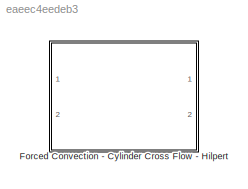
MODEL slx_eaeec4eedeb3
KIND library
CONFIG AbsTol = auto
CONFIG FixedStep = auto
CONFIG MaxStep = auto
CONFIG MinStep = auto
CONFIG RelTol = 1e-3
CONFIG SampleTimeConstraint = Unconstrained
CONFIG Solver = ode45
CONFIG SolverMode = Auto
CONFIG SolverName = ode45
CONFIG StartTime = 0.0
CONFIG StopTime = 10.0
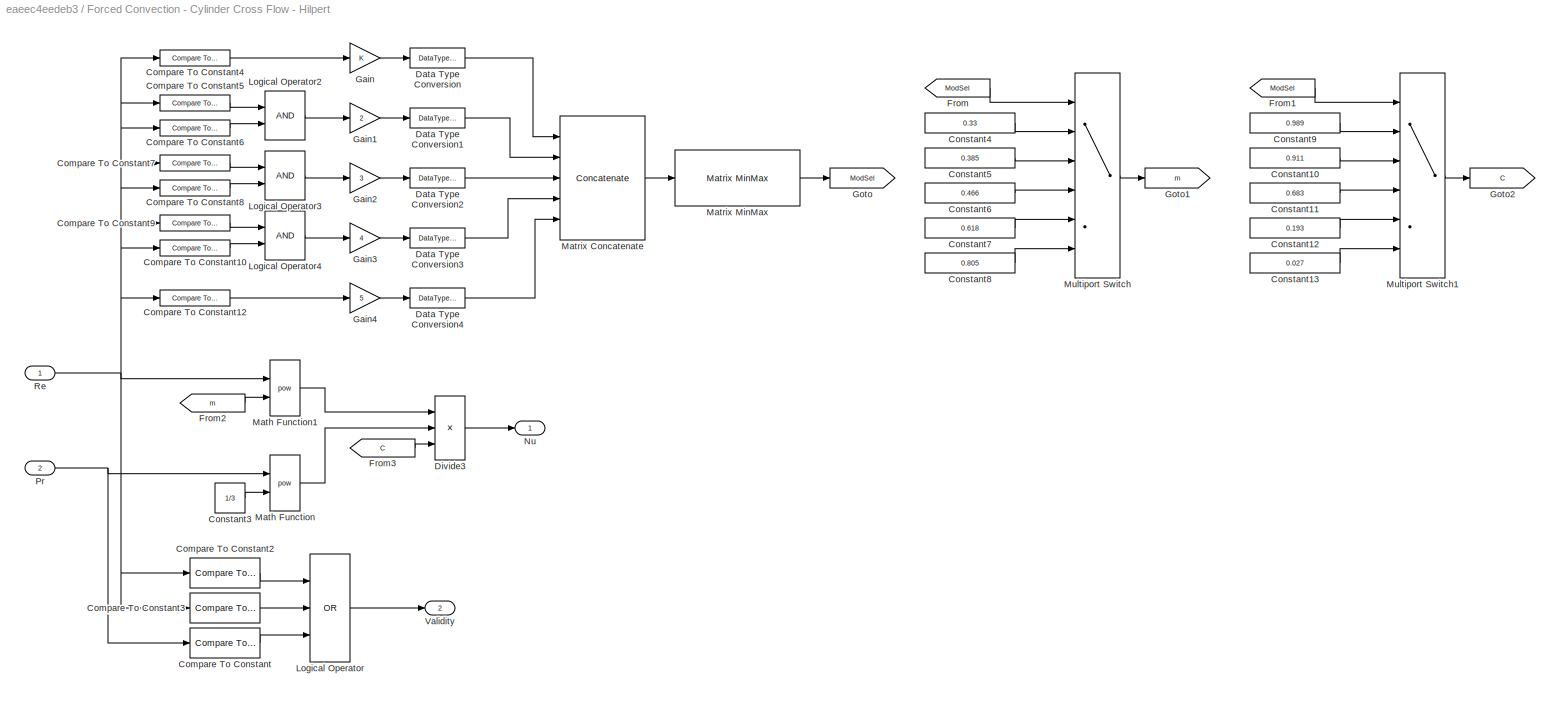
BLOCK [SubSystem] Forced Convection - Cylinder Cross Flow - Hilpert
  Ports = [2, 2]
  RequestExecContextInheritance = off
BLOCK [Reference] Forced Convection - Cylinder Cross Flow - Hilpert/Compare To Constant  REF=simulink/Logic and Bit
Operations/Compare
To Constant
  OutDataTypeStr = boolean
  Ports = [1, 1]
  SourceBlock = simulink/Logic and Bit\nOperations/Compare\nTo Constant
  SourceType = Compare To Constant
  ZeroCross = on
  const = 0.7
  relop = <
BLOCK [Reference] Forced Convection - Cylinder Cross Flow - Hilpert/Compare To Constant10  REF=simulink/Logic and Bit
Operations/Compare
To Constant
  OutDataTypeStr = boolean
  Ports = [1, 1]
  SourceBlock = simulink/Logic and Bit\nOperations/Compare\nTo Constant
  SourceType = Compare To Constant
  ZeroCross = on
  const = 40000
  relop = <
BLOCK [Reference] Forced Convection - Cylinder Cross Flow - Hilpert/Compare To Constant12  REF=simulink/Logic and Bit
Operations/Compare
To Constant
  OutDataTypeStr = boolean
  Ports = [1, 1]
  SourceBlock = simulink/Logic and Bit\nOperations/Compare\nTo Constant
  SourceType = Compare To Constant
  ZeroCross = on
  const = 40000
  relop = >=
BLOCK [Reference] Forced Convection - Cylinder Cross Flow - Hilpert/Compare To Constant2  REF=simulink/Logic and Bit
Operations/Compare
To Constant
  OutDataTypeStr = boolean
  Ports = [1, 1]
  SourceBlock = simulink/Logic and Bit\nOperations/Compare\nTo Constant
  SourceType = Compare To Constant
  ZeroCross = on
  const = 0.4
  relop = <
BLOCK [Reference] Forced Convection - Cylinder Cross Flow - Hilpert/Compare To Constant3  REF=simulink/Logic and Bit
Operations/Compare
To Constant
  OutDataTypeStr = boolean
  Ports = [1, 1]
  SourceBlock = simulink/Logic and Bit\nOperations/Compare\nTo Constant
  SourceType = Compare To Constant
  ZeroCross = on
  const = 400000
  relop = >
BLOCK [Reference] Forced Convection - Cylinder Cross Flow - Hilpert/Compare To Constant4  REF=simulink/Logic and Bit
Operations/Compare
To Constant
  OutDataTypeStr = boolean
  Ports = [1, 1]
  SourceBlock = simulink/Logic and Bit\nOperations/Compare\nTo Constant
  SourceType = Compare To Constant
  ZeroCross = on
  const = 4
  relop = <
BLOCK [Reference] Forced Convection - Cylinder Cross Flow - Hilpert/Compare To Constant5  REF=simulink/Logic and Bit
Operations/Compare
To Constant
  OutDataTypeStr = boolean
  Ports = [1, 1]
  SourceBlock = simulink/Logic and Bit\nOperations/Compare\nTo Constant
  SourceType = Compare To Constant
  ZeroCross = on
  const = 4
  relop = >=
BLOCK [Reference] Forced Convection - Cylinder Cross Flow - Hilpert/Compare To Constant6  REF=simulink/Logic and Bit
Operations/Compare
To Constant
  OutDataTypeStr = boolean
  Ports = [1, 1]
  SourceBlock = simulink/Logic and Bit\nOperations/Compare\nTo Constant
  SourceType = Compare To Constant
  ZeroCross = on
  const = 40
  relop = <
BLOCK [Reference] Forced Convection - Cylinder Cross Flow - Hilpert/Compare To Constant7  REF=simulink/Logic and Bit
Operations/Compare
To Constant
  OutDataTypeStr = boolean
  Ports = [1, 1]
  SourceBlock = simulink/Logic and Bit\nOperations/Compare\nTo Constant
  SourceType = Compare To Constant
  ZeroCross = on
  const = 40
  relop = >=
BLOCK [Reference] Forced Convection - Cylinder Cross Flow - Hilpert/Compare To Constant8  REF=simulink/Logic and Bit
Operations/Compare
To Constant
  OutDataTypeStr = boolean
  Ports = [1, 1]
  SourceBlock = simulink/Logic and Bit\nOperations/Compare\nTo Constant
  SourceType = Compare To Constant
  ZeroCross = on
  const = 4000
  relop = <
BLOCK [Reference] Forced Convection - Cylinder Cross Flow - Hilpert/Compare To Constant9  REF=simulink/Logic and Bit
Operations/Compare
To Constant
  OutDataTypeStr = boolean
  Ports = [1, 1]
  SourceBlock = simulink/Logic and Bit\nOperations/Compare\nTo Constant
  SourceType = Compare To Constant
  ZeroCross = on
  const = 4000
  relop = >=
BLOCK [Constant] Forced Convection - Cylinder Cross Flow - Hilpert/Constant10
  Value = 0.911
BLOCK [Constant] Forced Convection - Cylinder Cross Flow - Hilpert/Constant11
  Value = 0.683
BLOCK [Constant] Forced Convection - Cylinder Cross Flow - Hilpert/Constant12
  Value = 0.193
BLOCK [Constant] Forced Convection - Cylinder Cross Flow - Hilpert/Constant13
  Value = 0.027
BLOCK [Constant] Forced Convection - Cylinder Cross Flow - Hilpert/Constant3
  Value = 1/3
BLOCK [Constant] Forced Convection - Cylinder Cross Flow - Hilpert/Constant4
  Value = 0.33
BLOCK [Constant] Forced Convection - Cylinder Cross Flow - Hilpert/Constant5
  Value = 0.385
BLOCK [Constant] Forced Convection - Cylinder Cross Flow - Hilpert/Constant6
  Value = 0.466
BLOCK [Constant] Forced Convection - Cylinder Cross Flow - Hilpert/Constant7
  Value = 0.618
BLOCK [Constant] Forced Convection - Cylinder Cross Flow - Hilpert/Constant8
  Value = 0.805
BLOCK [Constant] Forced Convection - Cylinder Cross Flow - Hilpert/Constant9
  Value = 0.989
BLOCK [DataTypeConversion] Forced Convection - Cylinder Cross Flow - Hilpert/Data Type Conversion
  OutDataTypeStr = double
  RndMeth = Floor
  SaturateOnIntegerOverflow = off
BLOCK [DataTypeConversion] Forced Convection - Cylinder Cross Flow - Hilpert/Data Type Conversion1
  OutDataTypeStr = double
  RndMeth = Floor
  SaturateOnIntegerOverflow = off
BLOCK [DataTypeConversion] Forced Convection - Cylinder Cross Flow - Hilpert/Data Type Conversion2
  OutDataTypeStr = double
  RndMeth = Floor
  SaturateOnIntegerOverflow = off
BLOCK [DataTypeConversion] Forced Convection - Cylinder Cross Flow - Hilpert/Data Type Conversion3
  OutDataTypeStr = double
  RndMeth = Floor
  SaturateOnIntegerOverflow = off
BLOCK [DataTypeConversion] Forced Convection - Cylinder Cross Flow - Hilpert/Data Type Conversion4
  OutDataTypeStr = double
  RndMeth = Floor
  SaturateOnIntegerOverflow = off
BLOCK [Product] Forced Convection - Cylinder Cross Flow - Hilpert/Divide3
  InputSameDT = off
  Inputs = ***
  OutDataTypeStr = Inherit: Inherit via internal rule
  Ports = [3, 1]
  RndMeth = Floor
  SaturateOnIntegerOverflow = off
BLOCK [From] Forced Convection - Cylinder Cross Flow - Hilpert/From
  GotoTag = ModSel
BLOCK [From] Forced Convection - Cylinder Cross Flow - Hilpert/From1
  GotoTag = ModSel
BLOCK [From] Forced Convection - Cylinder Cross Flow - Hilpert/From2
  GotoTag = m
BLOCK [From] Forced Convection - Cylinder Cross Flow - Hilpert/From3
  GotoTag = C
BLOCK [Gain] Forced Convection - Cylinder Cross Flow - Hilpert/Gain
  OutDataTypeStr = Inherit: Inherit via internal rule
  ParamDataTypeStr = Inherit: Inherit via internal rule
  SaturateOnIntegerOverflow = off
BLOCK [Gain] Forced Convection - Cylinder Cross Flow - Hilpert/Gain1
  Gain = 2
  OutDataTypeStr = Inherit: Inherit via internal rule
  ParamDataTypeStr = Inherit: Inherit via internal rule
  SaturateOnIntegerOverflow = off
BLOCK [Gain] Forced Convection - Cylinder Cross Flow - Hilpert/Gain2
  Gain = 3
  OutDataTypeStr = Inherit: Inherit via internal rule
  ParamDataTypeStr = Inherit: Inherit via internal rule
  SaturateOnIntegerOverflow = off
BLOCK [Gain] Forced Convection - Cylinder Cross Flow - Hilpert/Gain3
  Gain = 4
  OutDataTypeStr = Inherit: Inherit via internal rule
  ParamDataTypeStr = Inherit: Inherit via internal rule
  SaturateOnIntegerOverflow = off
BLOCK [Gain] Forced Convection - Cylinder Cross Flow - Hilpert/Gain4
  Gain = 5
  OutDataTypeStr = Inherit: Inherit via internal rule
  ParamDataTypeStr = Inherit: Inherit via internal rule
  SaturateOnIntegerOverflow = off
BLOCK [Goto] Forced Convection - Cylinder Cross Flow - Hilpert/Goto
  GotoTag = ModSel
BLOCK [Goto] Forced Convection - Cylinder Cross Flow - Hilpert/Goto1
  GotoTag = m
BLOCK [Goto] Forced Convection - Cylinder Cross Flow - Hilpert/Goto2
  GotoTag = C
BLOCK [Logic] Forced Convection - Cylinder Cross Flow - Hilpert/Logical Operator
  AllPortsSameDT = off
  Inputs = 3
  Operator = OR
  OutDataTypeStr = boolean
  Ports = [3, 1]
BLOCK [Logic] Forced Convection - Cylinder Cross Flow - Hilpert/Logical Operator2
  AllPortsSameDT = off
  OutDataTypeStr = boolean
  Ports = [2, 1]
BLOCK [Logic] Forced Convection - Cylinder Cross Flow - Hilpert/Logical Operator3
  AllPortsSameDT = off
  OutDataTypeStr = boolean
  Ports = [2, 1]
BLOCK [Logic] Forced Convection - Cylinder Cross Flow - Hilpert/Logical Operator4
  AllPortsSameDT = off
  OutDataTypeStr = boolean
  Ports = [2, 1]
BLOCK [Math] Forced Convection - Cylinder Cross Flow - Hilpert/Math Function
  Operator = pow
  Ports = [2, 1]
BLOCK [Math] Forced Convection - Cylinder Cross Flow - Hilpert/Math Function1
  Operator = pow
  Ports = [2, 1]
BLOCK [Concatenate] Forced Convection - Cylinder Cross Flow - Hilpert/Matrix Concatenate
  ConcatenateDimension = 2
  Mode = Multidimensional array
  NumInputs = 5
  Ports = [5, 1]
BLOCK [Reference] Forced Convection - Cylinder Cross Flow - Hilpert/Matrix MinMax  REF=lib_GenTools_MinMax/Matrix MinMax
  BN_M = gcb
  Ports = [1, 1]
  SourceBlock = lib_GenTools_MinMax/Matrix MinMax
  SourceType = TSAT: Matrix MinMax Block
  all_M = off
  cols_M = off
  minmax_M = off
  rows_M = on
BLOCK [MultiPortSwitch] Forced Convection - Cylinder Cross Flow - Hilpert/Multiport Switch
  InputSameDT = off
  Inputs = 5
  Ports = [6, 1]
  SaturateOnIntegerOverflow = off
BLOCK [MultiPortSwitch] Forced Convection - Cylinder Cross Flow - Hilpert/Multiport Switch1
  InputSameDT = off
  Inputs = 5
  Ports = [6, 1]
  SaturateOnIntegerOverflow = off
BLOCK [Outport] Forced Convection - Cylinder Cross Flow - Hilpert/Nu
  IconDisplay = Port number
BLOCK [Inport] Forced Convection - Cylinder Cross Flow - Hilpert/Pr
  IconDisplay = Port number
  Port = 2
BLOCK [Inport] Forced Convection - Cylinder Cross Flow - Hilpert/Re
  IconDisplay = Port number
BLOCK [Outport] Forced Convection - Cylinder Cross Flow - Hilpert/Validity
  IconDisplay = Port number
  Port = 2
LINE Forced Convection - Cylinder Cross Flow - Hilpert/Compare To Constant10:1 -> Forced Convection - Cylinder Cross Flow - Hilpert/Logical Operator4:2
LINE Forced Convection - Cylinder Cross Flow - Hilpert/Compare To Constant12:1 -> Forced Convection - Cylinder Cross Flow - Hilpert/Gain4:1
LINE Forced Convection - Cylinder Cross Flow - Hilpert/Compare To Constant2:1 -> Forced Convection - Cylinder Cross Flow - Hilpert/Logical Operator:1
LINE Forced Convection - Cylinder Cross Flow - Hilpert/Compare To Constant3:1 -> Forced Convection - Cylinder Cross Flow - Hilpert/Logical Operator:2
LINE Forced Convection - Cylinder Cross Flow - Hilpert/Compare To Constant4:1 -> Forced Convection - Cylinder Cross Flow - Hilpert/Gain:1
LINE Forced Convection - Cylinder Cross Flow - Hilpert/Compare To Constant5:1 -> Forced Convection - Cylinder Cross Flow - Hilpert/Logical Operator2:1
LINE Forced Convection - Cylinder Cross Flow - Hilpert/Compare To Constant6:1 -> Forced Convection - Cylinder Cross Flow - Hilpert/Logical Operator2:2
LINE Forced Convection - Cylinder Cross Flow - Hilpert/Compare To Constant7:1 -> Forced Convection - Cylinder Cross Flow - Hilpert/Logical Operator3:1
LINE Forced Convection - Cylinder Cross Flow - Hilpert/Compare To Constant8:1 -> Forced Convection - Cylinder Cross Flow - Hilpert/Logical Operator3:2
LINE Forced Convection - Cylinder Cross Flow - Hilpert/Compare To Constant9:1 -> Forced Convection - Cylinder Cross Flow - Hilpert/Logical Operator4:1
LINE Forced Convection - Cylinder Cross Flow - Hilpert/Compare To Constant:1 -> Forced Convection - Cylinder Cross Flow - Hilpert/Logical Operator:3
LINE Forced Convection - Cylinder Cross Flow - Hilpert/Constant10:1 -> Forced Convection - Cylinder Cross Flow - Hilpert/Multiport Switch1:3
LINE Forced Convection - Cylinder Cross Flow - Hilpert/Constant11:1 -> Forced Convection - Cylinder Cross Flow - Hilpert/Multiport Switch1:4
LINE Forced Convection - Cylinder Cross Flow - Hilpert/Constant12:1 -> Forced Convection - Cylinder Cross Flow - Hilpert/Multiport Switch1:5
LINE Forced Convection - Cylinder Cross Flow - Hilpert/Constant13:1 -> Forced Convection - Cylinder Cross Flow - Hilpert/Multiport Switch1:6
LINE Forced Convection - Cylinder Cross Flow - Hilpert/Constant3:1 -> Forced Convection - Cylinder Cross Flow - Hilpert/Math Function:2
LINE Forced Convection - Cylinder Cross Flow - Hilpert/Constant4:1 -> Forced Convection - Cylinder Cross Flow - Hilpert/Multiport Switch:2
LINE Forced Convection - Cylinder Cross Flow - Hilpert/Constant5:1 -> Forced Convection - Cylinder Cross Flow - Hilpert/Multiport Switch:3
LINE Forced Convection - Cylinder Cross Flow - Hilpert/Constant6:1 -> Forced Convection - Cylinder Cross Flow - Hilpert/Multiport Switch:4
LINE Forced Convection - Cylinder Cross Flow - Hilpert/Constant7:1 -> Forced Convection - Cylinder Cross Flow - Hilpert/Multiport Switch:5
LINE Forced Convection - Cylinder Cross Flow - Hilpert/Constant8:1 -> Forced Convection - Cylinder Cross Flow - Hilpert/Multiport Switch:6
LINE Forced Convection - Cylinder Cross Flow - Hilpert/Constant9:1 -> Forced Convection - Cylinder Cross Flow - Hilpert/Multiport Switch1:2
LINE Forced Convection - Cylinder Cross Flow - Hilpert/Data Type Conversion1:1 -> Forced Convection - Cylinder Cross Flow - Hilpert/Matrix Concatenate:2
LINE Forced Convection - Cylinder Cross Flow - Hilpert/Data Type Conversion2:1 -> Forced Convection - Cylinder Cross Flow - Hilpert/Matrix Concatenate:3
LINE Forced Convection - Cylinder Cross Flow - Hilpert/Data Type Conversion3:1 -> Forced Convection - Cylinder Cross Flow - Hilpert/Matrix Concatenate:4
LINE Forced Convection - Cylinder Cross Flow - Hilpert/Data Type Conversion4:1 -> Forced Convection - Cylinder Cross Flow - Hilpert/Matrix Concatenate:5
LINE Forced Convection - Cylinder Cross Flow - Hilpert/Data Type Conversion:1 -> Forced Convection - Cylinder Cross Flow - Hilpert/Matrix Concatenate:1
LINE Forced Convection - Cylinder Cross Flow - Hilpert/Divide3:1 -> Forced Convection - Cylinder Cross Flow - Hilpert/Nu:1
LINE Forced Convection - Cylinder Cross Flow - Hilpert/From1:1 -> Forced Convection - Cylinder Cross Flow - Hilpert/Multiport Switch1:1
LINE Forced Convection - Cylinder Cross Flow - Hilpert/From2:1 -> Forced Convection - Cylinder Cross Flow - Hilpert/Math Function1:2
LINE Forced Convection - Cylinder Cross Flow - Hilpert/From3:1 -> Forced Convection - Cylinder Cross Flow - Hilpert/Divide3:3
LINE Forced Convection - Cylinder Cross Flow - Hilpert/From:1 -> Forced Convection - Cylinder Cross Flow - Hilpert/Multiport Switch:1
LINE Forced Convection - Cylinder Cross Flow - Hilpert/Gain1:1 -> Forced Convection - Cylinder Cross Flow - Hilpert/Data Type Conversion1:1
LINE Forced Convection - Cylinder Cross Flow - Hilpert/Gain2:1 -> Forced Convection - Cylinder Cross Flow - Hilpert/Data Type Conversion2:1
LINE Forced Convection - Cylinder Cross Flow - Hilpert/Gain3:1 -> Forced Convection - Cylinder Cross Flow - Hilpert/Data Type Conversion3:1
LINE Forced Convection - Cylinder Cross Flow - Hilpert/Gain4:1 -> Forced Convection - Cylinder Cross Flow - Hilpert/Data Type Conversion4:1
LINE Forced Convection - Cylinder Cross Flow - Hilpert/Gain:1 -> Forced Convection - Cylinder Cross Flow - Hilpert/Data Type Conversion:1
LINE Forced Convection - Cylinder Cross Flow - Hilpert/Logical Operator2:1 -> Forced Convection - Cylinder Cross Flow - Hilpert/Gain1:1
LINE Forced Convection - Cylinder Cross Flow - Hilpert/Logical Operator3:1 -> Forced Convection - Cylinder Cross Flow - Hilpert/Gain2:1
LINE Forced Convection - Cylinder Cross Flow - Hilpert/Logical Operator4:1 -> Forced Convection - Cylinder Cross Flow - Hilpert/Gain3:1
LINE Forced Convection - Cylinder Cross Flow - Hilpert/Logical Operator:1 -> Forced Convection - Cylinder Cross Flow - Hilpert/Validity:1
LINE Forced Convection - Cylinder Cross Flow - Hilpert/Math Function1:1 -> Forced Convection - Cylinder Cross Flow - Hilpert/Divide3:1
LINE Forced Convection - Cylinder Cross Flow - Hilpert/Math Function:1 -> Forced Convection - Cylinder Cross Flow - Hilpert/Divide3:2
LINE Forced Convection - Cylinder Cross Flow - Hilpert/Matrix Concatenate:1 -> Forced Convection - Cylinder Cross Flow - Hilpert/Matrix MinMax:1
LINE Forced Convection - Cylinder Cross Flow - Hilpert/Matrix MinMax:1 -> Forced Convection - Cylinder Cross Flow - Hilpert/Goto:1
LINE Forced Convection - Cylinder Cross Flow - Hilpert/Multiport Switch1:1 -> Forced Convection - Cylinder Cross Flow - Hilpert/Goto2:1
LINE Forced Convection - Cylinder Cross Flow - Hilpert/Multiport Switch:1 -> Forced Convection - Cylinder Cross Flow - Hilpert/Goto1:1
NET Forced Convection - Cylinder Cross Flow - Hilpert/Pr:1 -> Forced Convection - Cylinder Cross Flow - Hilpert/Compare To Constant:1, Forced Convection - Cylinder Cross Flow - Hilpert/Math Function:1
NET Forced Convection - Cylinder Cross Flow - Hilpert/Re:1 -> Forced Convection - Cylinder Cross Flow - Hilpert/Compare To Constant10:1, Forced Convection - Cylinder Cross Flow - Hilpert/Compare To Constant12:1, Forced Convection - Cylinder Cross Flow - Hilpert/Compare To Constant2:1, Forced Convection - Cylinder Cross Flow - Hilpert/Compare To Constant3:1, Forced Convection - Cylinder Cross Flow - Hilpert/Compare To Constant4:1, Forced Convection - Cylinder Cross Flow - Hilpert/Compare To Constant5:1, Forced Convection - Cylinder Cross Flow - Hilpert/Compare To Constant6:1, Forced Convection - Cylinder Cross Flow - Hilpert/Compare To Constant7:1, Forced Convection - Cylinder Cross Flow - Hilpert/Compare To Constant8:1, Forced Convection - Cylinder Cross Flow - Hilpert/Compare To Constant9:1, Forced Convection - Cylinder Cross Flow - Hilpert/Math Function1:1
note: NET lines group one-source signal fan-out (src -> all destinations, sorted); 1:1 wires keep LINE
